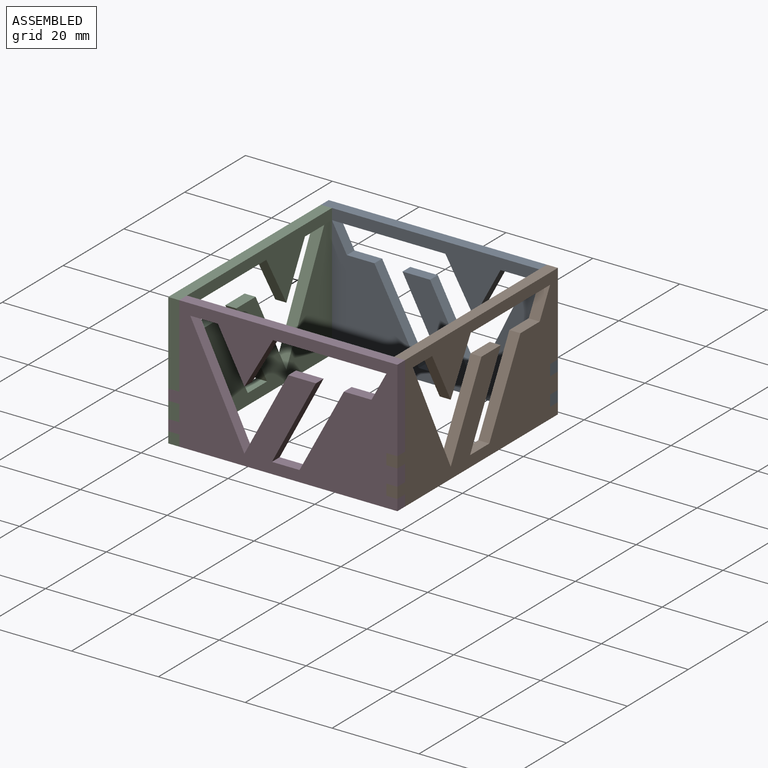
[diagram: assembled view]
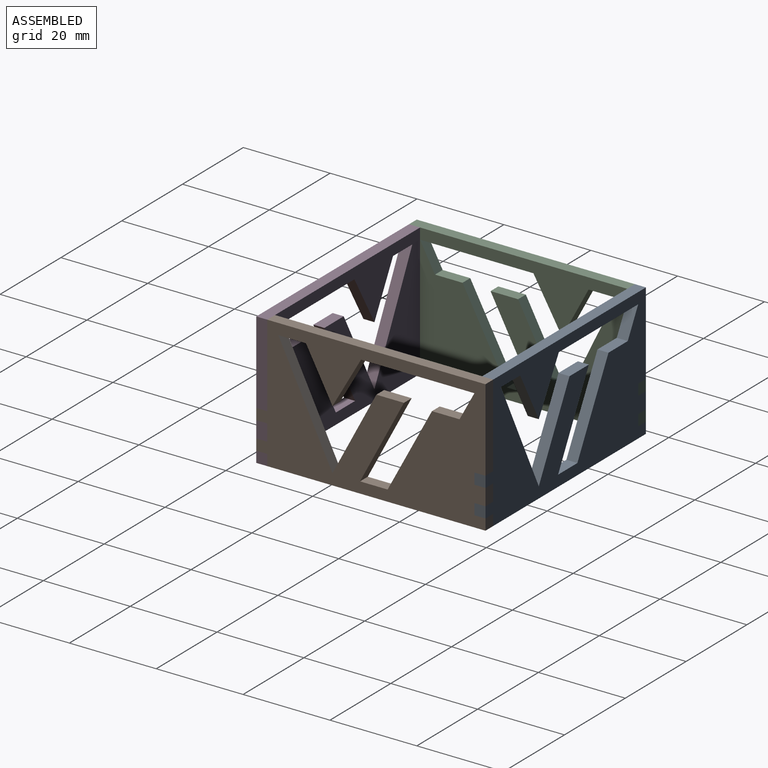
[diagram: assembled view, second angle]
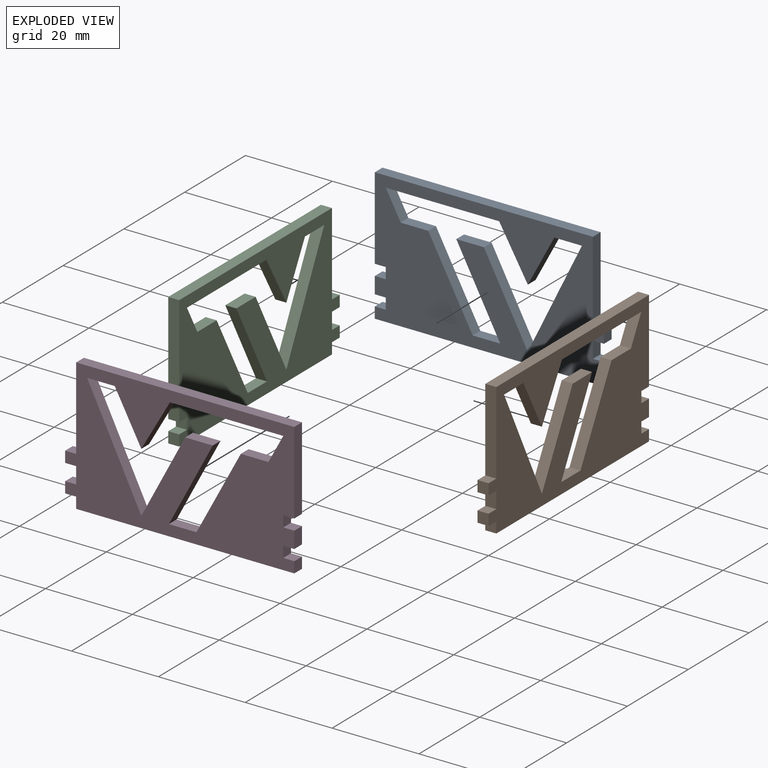
[diagram: exploded view]
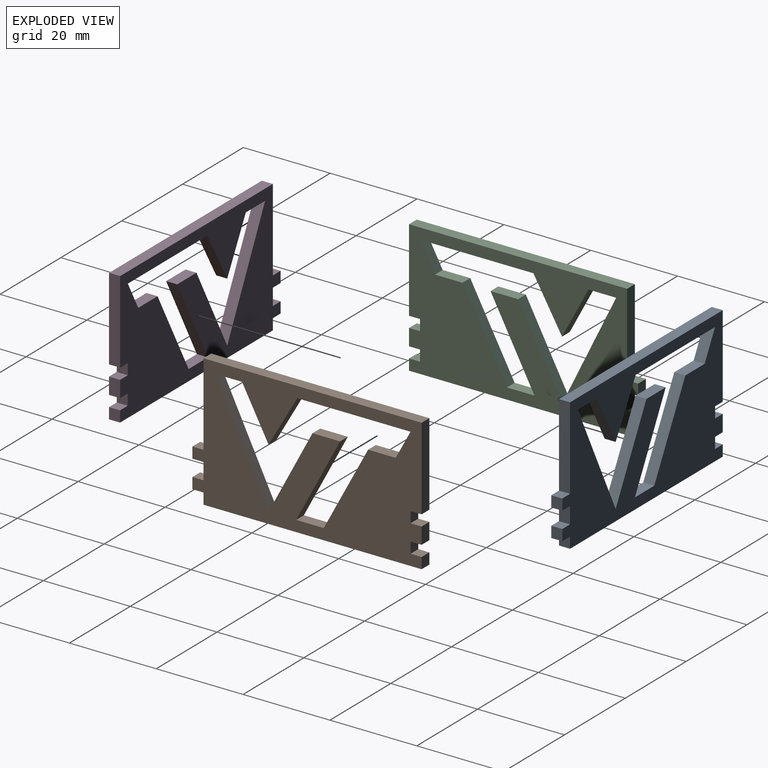
[diagram: exploded view, second angle]
ASSEMBLY  parts=4 mates=3
PART A: 34 faces, bbox 52.8x2.5x30.5 mm
  f0: plane 3.81x2.54mm, normal (-1,0,0), area 9.7mm2, adj f4,f9,f28,f32
  f1: plane 19.05x2.54mm, normal (-1,0,0), area 48.4mm2, adj f4,f8,f9,f29
  f2: plane 19.05x2.54mm, normal (1,0,0), area 48.4mm2, adj f4,f8,f9,f26
  f3: plane 3.81x2.54mm, normal (1,0,0), area 9.7mm2, adj f4,f9,f23,f27
  f4: plane 52.78x30.48mm, normal (0,1,0), area 1030.5mm2, adj f0,f1,f2,f3,f5,f6,f7,f8
  f5: plane 2.54x2.54mm, normal (-1,0,0), area 6.5mm2, adj f4,f6,f9,f31
  f6: plane 50.24x2.54mm, normal (0,0,-1), area 127.6mm2, adj f4,f5,f7,f9
  f7: plane 2.54x2.54mm, normal (1,0,0), area 6.5mm2, adj f4,f6,f9,f24
  f8: plane 50.24x2.54mm, normal (0,0,1), area 127.6mm2, adj f1,f2,f4,f9
  f9: plane 52.78x30.48mm, normal (0,-1,0), area 1030.5mm2, adj f0,f1,f2,f3,f5,f6,f7,f8
  f10: plane 11.43x6.11mm, normal (-0.88,0,-0.47), area 32.9mm2, adj f4,f9,f11,f21
  f11: plane 6.35x2.54mm, normal (0,0,-1), area 16.1mm2, adj f4,f9,f10,f12
  f12: plane 25.4x12.46mm, normal (0.9,0,0.44), area 71.9mm2, adj f4,f9,f11,f13
  f13: plane 19.05x10.11mm, normal (-0.88,0,0.47), area 54.8mm2, adj f4,f9,f12,f14
  f14: plane 6.35x2.54mm, normal (0,0,1), area 16.1mm2, adj f4,f9,f13,f15
  f15: plane 19.05x10.11mm, normal (0.88,0,-0.47), area 54.8mm2, adj f4,f9,f14,f16
  f16: plane 6.35x2.54mm, normal (0,0,1), area 16.1mm2, adj f4,f9,f15,f17
  f17: plane 19.05x10.22mm, normal (-0.88,0,0.47), area 54.9mm2, adj f4,f9,f16,f18
  f18: plane 6.35x2.54mm, normal (0,0,1), area 16.1mm2, adj f4,f9,f17,f19
  f19: plane 6.35x3.43mm, normal (-0.88,0,0.48), area 18.3mm2, adj f4,f9,f18,f20
  f20: plane 26.11x2.54mm, normal (0,0,-1), area 66.3mm2, adj f4,f9,f19,f21
  f21: plane 11.43x6.59mm, normal (0.87,0,-0.5), area 33.5mm2, adj f4,f9,f10,f20
  f22: plane 2.54x2.54mm, normal (1,0,0), area 6.5mm2, adj f4,f9,f23,f24
  f23: plane 2.54x2.54mm, normal (0,0,-1), area 6.5mm2, adj f3,f4,f9,f22
  f24: plane 2.54x2.54mm, normal (0,0,1), area 6.5mm2, adj f4,f7,f9,f22
  f25: plane 2.54x2.54mm, normal (1,0,0), area 6.5mm2, adj f4,f9,f26,f27
  f26: plane 2.54x2.54mm, normal (0,0,-1), area 6.5mm2, adj f2,f4,f9,f25
  f27: plane 2.54x2.54mm, normal (0,0,1), area 6.5mm2, adj f3,f4,f9,f25
  f28: plane 2.54x2.54mm, normal (0,0,-1), area 6.5mm2, adj f0,f4,f9,f30
  f29: plane 2.54x2.54mm, normal (0,0,1), area 6.5mm2, adj f1,f4,f9,f30
  f30: plane 2.54x2.54mm, normal (-1,0,0), area 6.5mm2, adj f4,f9,f28,f29
  f31: plane 2.54x2.54mm, normal (0,0,-1), area 6.5mm2, adj f4,f5,f9,f33
  f32: plane 2.54x2.54mm, normal (0,0,1), area 6.5mm2, adj f0,f4,f9,f33
  f33: plane 2.54x2.54mm, normal (-1,0,0), area 6.5mm2, adj f4,f9,f31,f32
PART B: same geometry as A
PART C: same geometry as A
PART D: same geometry as A
PLACE A rot(axis=(0,0,-1),180deg) t=(-44.33,37.03,11.24)mm
PLACE B rot(axis=(0,0,1),90deg) t=(-23.96,4.62,11.24)mm
PLACE C rot(axis=(0,0,-1),90deg) t=(-76.74,16.66,11.24)mm
PLACE D rot(axis=(-0.05,0,1),0deg) t=(-56.37,-15.75,11.24)mm
MATE planar A.f30 <-> B.f9  axis (1,0,0) through (-23.96,34.49,18.86)mm
MATE planar D.f9 <-> B.f30  axis (0,-1,0) through (-26.5,-15.75,18.86)mm
MATE planar C.f30 <-> A.f9  axis (0,1,0) through (-74.2,37.03,18.86)mm
